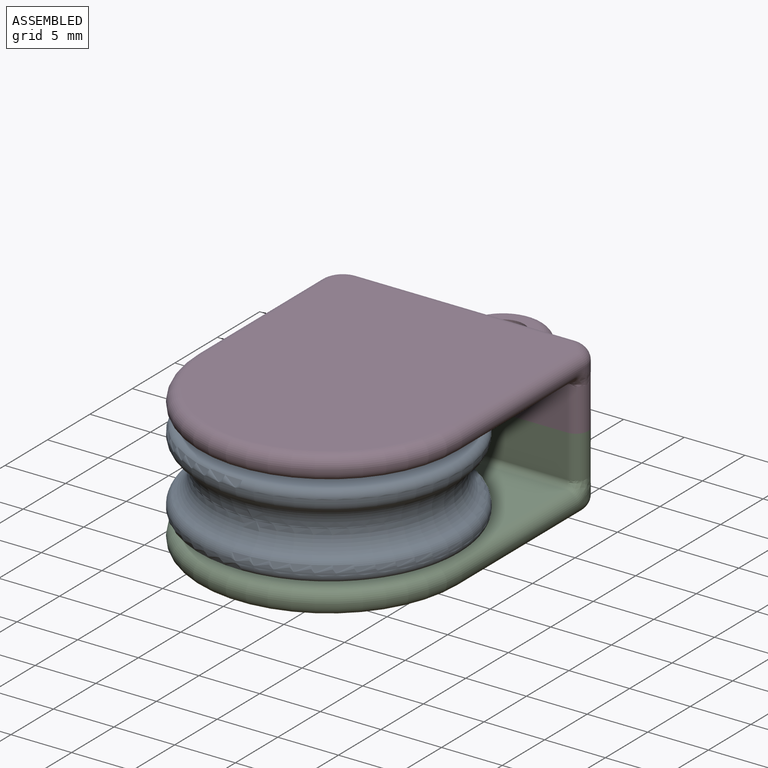
[diagram: assembled view]
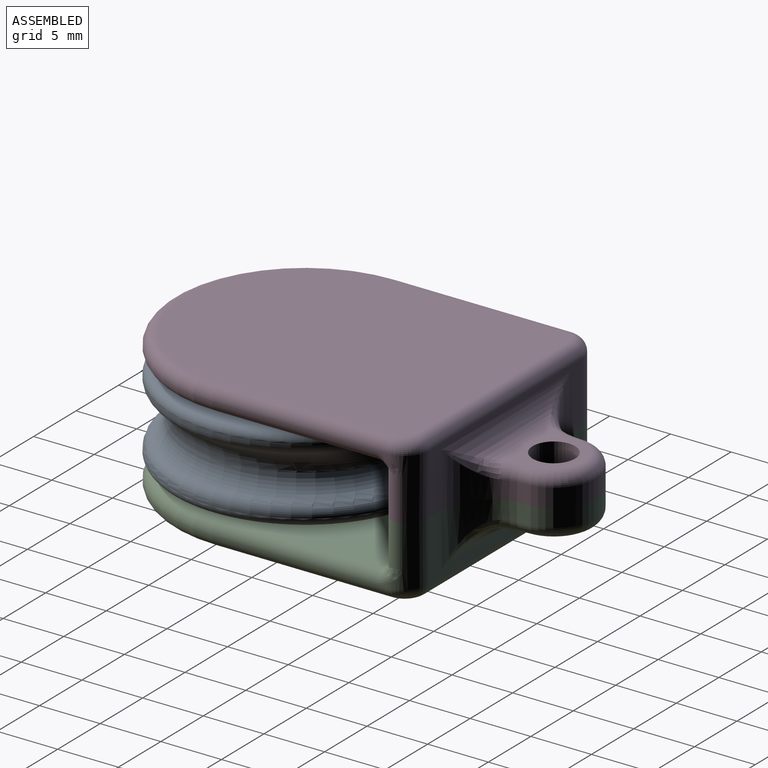
[diagram: assembled view, second angle]
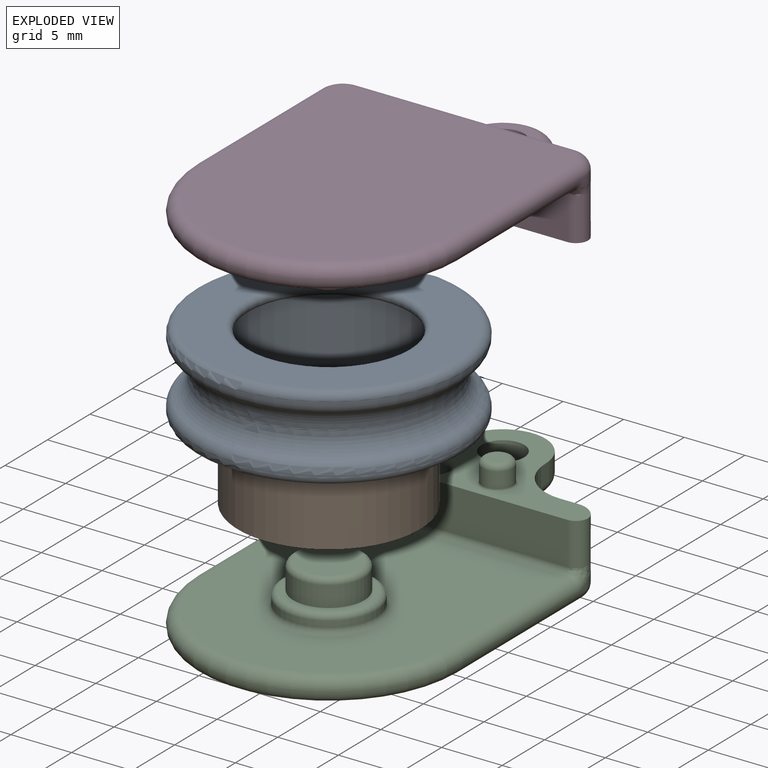
[diagram: exploded view]
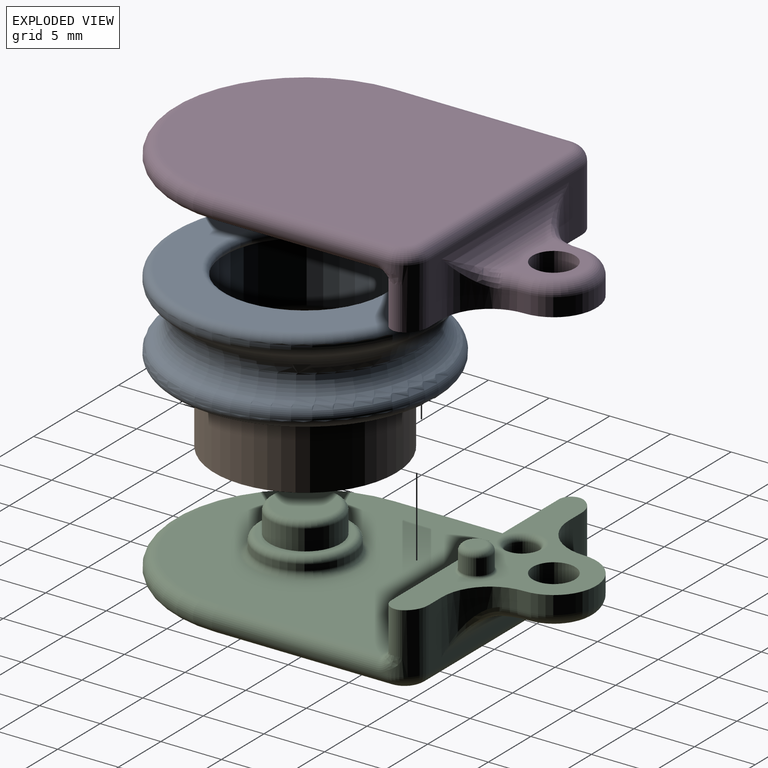
[diagram: exploded view, second angle]
ASSEMBLY  parts=4 mates=4
PART A: 15 faces, bbox 24.9x24.9x7 mm
  f0: cylinder r=7.52mm len=15.05mm, axis (0,0,-1), area 250.6mm2, adj f4,f12
  f1: cylinder r=11mm len=22mm, axis (0,0,-1), area 9.6mm2, adj f10,f13
  f2: plane 20.6x20.6mm, normal (0,0,-1), area 179.4mm2, adj f13,f14
  f3: cylinder r=9.5mm len=19mm, axis (0,0,-1), area 7.6mm2, adj f7,f8
  f4: plane 15.05x15.05mm, normal (0,0,1), area 24mm2, adj f0,f14
  f5: cylinder r=11mm len=22mm, axis (0,0,-1), area 9.6mm2, adj f9,f11
  f6: plane 20.6x20.6mm, normal (0,0,1), area 120.8mm2, adj f11,f12
  f7: torus R=11.5mm, axis (0,0,-1), area 129.6mm2, adj f3,f10
  f8: torus R=11.5mm, axis (0,0,1), area 129.6mm2, adj f3,f9
  f9: torus R=10mm, axis (0,0,-1), area 71.2mm2, adj f5,f8
  f10: torus R=10mm, axis (0,0,-1), area 71.2mm2, adj f1,f7
  f11: torus R=10.3mm, axis (0,0,1), area 74.2mm2, adj f5,f6
  f12: torus R=8.22mm, axis (0,0,1), area 53.7mm2, adj f0,f6
  f13: torus R=10.3mm, axis (0,0,1), area 74.2mm2, adj f1,f2
  f14: torus R=7mm, axis (0,0,1), area 65.9mm2, adj f2,f4
PART B: 4 faces, bbox 15x15x5 mm
  f0: cylinder r=2.95mm len=5.9mm, axis (0,0,-1), area 92.7mm2, adj f2,f3
  f1: cylinder r=7.5mm len=15mm, axis (0,0,-1), area 235.6mm2, adj f2,f3
  f2: plane 15x15mm, normal (0,0,1), area 149.4mm2, adj f0,f1
  f3: plane 15x15mm, normal (0,0,-1), area 149.4mm2, adj f0,f1
PART C: 47 faces, bbox 23.8x36.2x8 mm
  f0: plane 1x0.38mm, normal (1,0,0), area 0.1mm2, adj f12,f23,f25
  f1: plane 1x0.38mm, normal (-1,0,0), area 0.1mm2, adj f11,f26,f29
  f2: plane 23.5x20mm, normal (0,0,1), area 366.3mm2, adj f19,f25,f27,f29,f39
  f3: plane 25.5x20mm, normal (0,0,-1), area 466.7mm2, adj f25,f27,f28,f29,f30,f31
  f4: cylinder r=3.9mm len=7.8mm, axis (0,0,-1), area 12.3mm2, adj f38,f39
  f5: plane 6.8x6.8mm, normal (0,0,1), area 9.4mm2, adj f7,f38
  f6: plane 4.85x4.85mm, normal (0,0,1), area 18.5mm2, adj f37
  f7: cylinder r=2.93mm len=5.85mm, axis (0,0,-1), area 31.2mm2, adj f5,f37
  f8: plane 19.73x3.5mm, normal (0,-1,0), area 69.1mm2, adj f14,f19,f20,f22
  f9: plane 18x5mm, normal (0,1,0), area 22.5mm2, adj f11,f12,f14,f16,f17,f18,f30
  f10: cylinder r=3.5mm len=7mm, axis (0,0,-1), area 16.5mm2, adj f14,f16,f17,f34
  f11: cylinder r=2mm len=5mm, axis (0,0,-1), area 11.2mm2, adj f1,f9,f14,f22,f24,f31
  f12: cylinder r=2mm len=5mm, axis (0,0,-1), area 11.2mm2, adj f0,f9,f14,f20,f21,f28
  f13: cylinder r=1.75mm len=3.5mm, axis (0,0,-1), area 27.5mm2, adj f14,f15
  f14: plane 21.73x10mm, normal (0,0,1), area 80.6mm2, adj f8,f9,f10,f11,f12,f13,f16,f17
  f15: plane 5.84x4.5mm, normal (0,0,-1), area 10.7mm2, adj f13,f18,f33,f34,f35
  f16: cylinder r=4mm len=4.5mm, axis (0,0,1), area 14.7mm2, adj f9,f10,f14,f35,f36
  f17: cylinder r=4mm len=4.5mm, axis (0,0,-1), area 14.7mm2, adj f9,f10,f14,f32,f33
  f18: cylinder r=2mm len=15mm, axis (1,0,0), area 30.5mm2, adj f9,f15,f32,f36
  f19: cylinder r=0.5mm len=20mm, axis (1,0,0), area 15.7mm2, adj f2,f8,f21,f23,f24,f26
  f20: cylinder r=1mm len=3.5mm, axis (0,0,-1), area 7.3mm2, adj f8,f12,f14,f21
  f21: bspline ~1.73x1.71mm, area 1.6mm2, adj f12,f19,f20,f23
  f22: cylinder r=1mm len=3.5mm, axis (0,0,-1), area 7.3mm2, adj f8,f11,f14,f24
  f23: torus R=1.5mm, axis (1,0,0), area 1mm2, adj f0,f19,f21,f25
  f24: bspline ~1.84x1.73mm, area 1.6mm2, adj f11,f19,f22,f26
  f25: cylinder r=1mm len=14.5mm, axis (0,-1,0), area 44mm2, adj f0,f2,f3,f23,f27,f28
  f26: torus R=1.5mm, axis (1,0,0), area 1mm2, adj f1,f19,f24,f29
  f27: torus R=10mm, axis (0,0,1), area 105mm2, adj f2,f3,f25,f29
  f28: torus R=1mm, axis (0,0,1), area 4mm2, adj f3,f12,f25,f30
  f29: cylinder r=1mm len=14.5mm, axis (0,1,0), area 44mm2, adj f1,f2,f3,f26,f27,f31
  f30: cylinder r=1mm len=18mm, axis (-1,0,0), area 28.3mm2, adj f3,f9,f28,f31
  f31: torus R=1mm, axis (0,0,1), area 4mm2, adj f3,f11,f29,f30
  f32: bspline ~4.79x3mm, area 4.4mm2, adj f17,f18,f33
  f33: torus R=5mm, axis (0,0,1), area 2.8mm2, adj f15,f17,f32,f34
  f34: torus R=2.5mm, axis (0,0,1), area 15.5mm2, adj f10,f15,f33,f35
  f35: torus R=5mm, axis (0,0,1), area 2.8mm2, adj f15,f16,f34,f36
  f36: bspline ~4.79x3mm, area 4.4mm2, adj f16,f18,f35
  f37: torus R=2.43mm, axis (0,0,1), area 13.5mm2, adj f6,f7
  f38: torus R=3.4mm, axis (0,0,1), area 18.3mm2, adj f4,f5
  f39: torus R=4.4mm, axis (0,0,1), area 20.1mm2, adj f2,f4
  f40: cylinder r=1.25mm len=2.5mm, axis (0,0,-1), area 10.2mm2, adj f45,f46
  f41: plane 1.5x1.5mm, normal (0,0,1), area 1.8mm2, adj f45
  f42: cylinder r=1.28mm len=2.55mm, axis (0,0,1), area 13.6mm2, adj f43,f44
  f43: plane 2.55x2.55mm, normal (0,0,1), area 5.1mm2, adj f42
  f44: torus R=1.78mm, axis (0,0,1), area 7.2mm2, adj f14,f42
  f45: torus R=0.75mm, axis (0,0,1), area 5.3mm2, adj f40,f41
  f46: torus R=1.45mm, axis (0,0,1), area 2.6mm2, adj f14,f40
PART D: same geometry as C
PLACE A rot(axis=(0,-1,0),180deg) t=(-0.59,-1.01,12)mm
PLACE B rot(axis=(0.71,-0.71,0),180deg) t=(-0.59,-1.01,11)mm
PLACE C t=(-0.59,-1.01,2.5)mm fixed
PLACE D rot(axis=(0,1,0),180deg) t=(-0.59,-1.01,14.5)mm
MATE revolute B.f0 <-> A.f0  axis (0,0,1) through (-0.59,-1.01,11)mm
MATE revolute B.f0 <-> D.f7  axis (0,0,1) through (-0.59,-1.01,11)mm
MATE fastened C.f10 <-> D.f10  axis (0,0,-1) through (-0.59,19.49,8.5)mm
MATE revolute C.f7 <-> B.f1  axis (0,0,-1) through (-0.59,-1.01,6)mm
